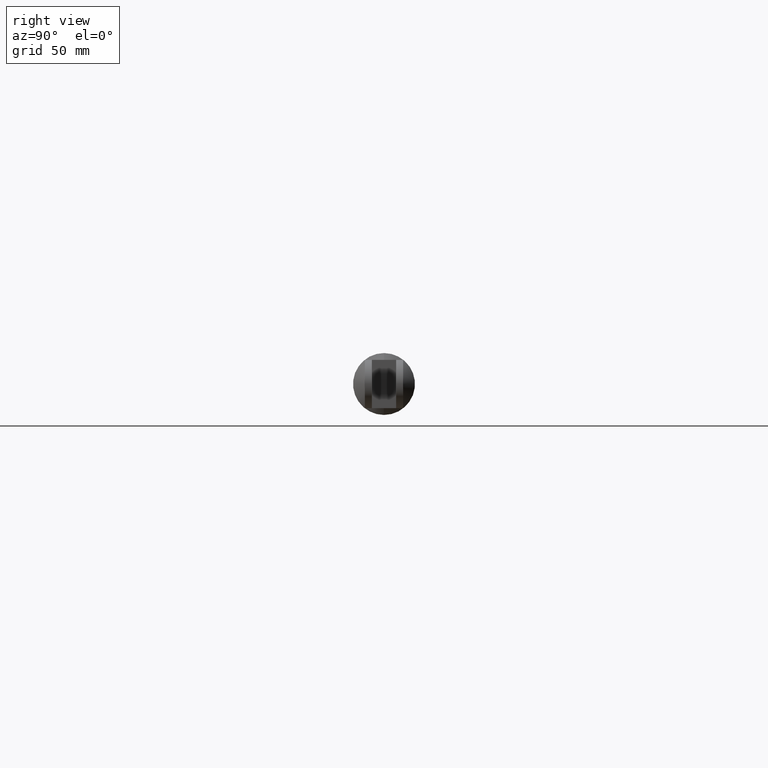
[diagram: clean part render]
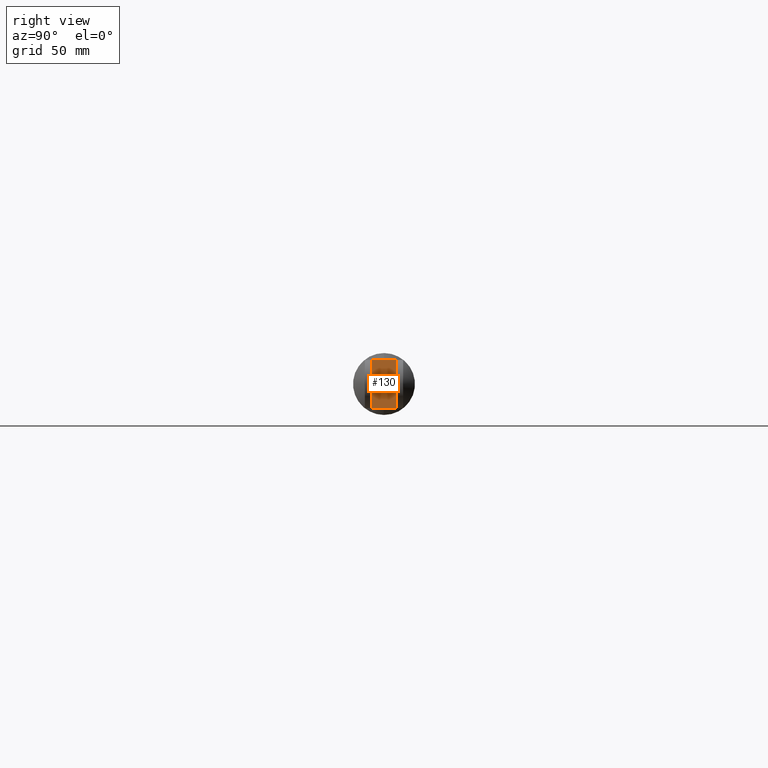
[diagram: same view with one face highlighted and labeled with its STEP entity id]
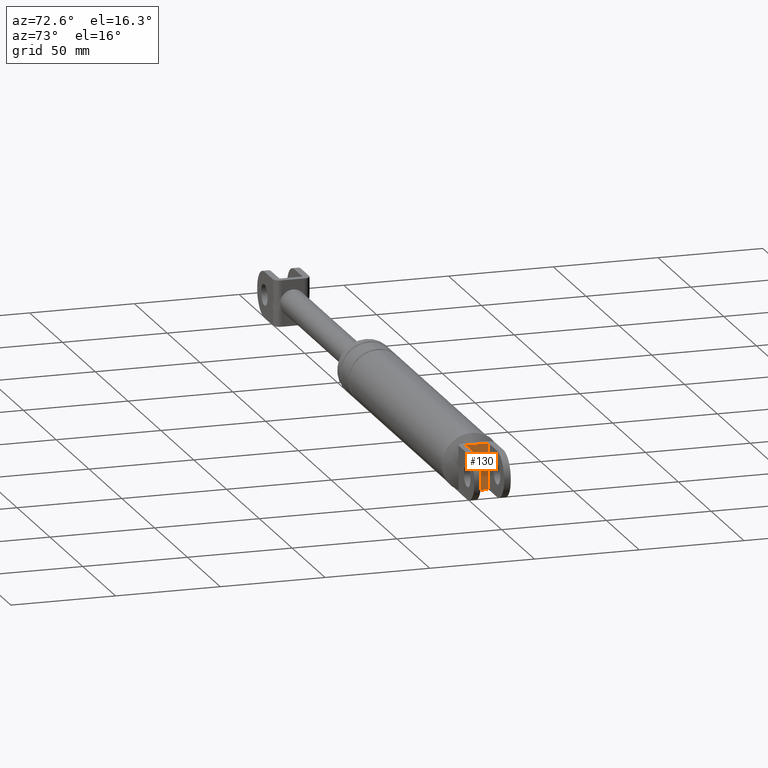
[diagram: same view with one face highlighted and labeled with its STEP entity id]
A machine part, right view. The second image highlights one B-rep face of the part: STEP entity #130.
A second angle (auxiliary view) of the same face is appended — the face is thin or edge-on in the first view.
In plain terms, the highlighted planar face has unit normal (-1, 0, 0).
Its self-contained STEP definition (entity closure, byte-faithful):
#130=ADVANCED_FACE('',(#362),#361,.F.);
#361=PLANE('',#976);
#362=FACE_OUTER_BOUND('',#977,.T.);
#973=CARTESIAN_POINT('',(3.62475208154E+002,-6.60000000000E+000,1.66244335058E+002));
#974=DIRECTION('',(-1.00000000000E+000,0.00000000000E+000,0.00000000000E+000));
#975=DIRECTION('',(0.00000000000E+000,0.00000000000E+000,1.00000000000E+000));
#976=AXIS2_PLACEMENT_3D('',#973,#974,#975);
#977=EDGE_LOOP('',(#1488,#1489,#1490,#1491));
#1488=ORIENTED_EDGE('',*,*,#1757,.T.);
#1489=ORIENTED_EDGE('',*,*,#1753,.F.);
#1490=ORIENTED_EDGE('',*,*,#1759,.F.);
#1491=ORIENTED_EDGE('',*,*,#1735,.T.);
#1735=EDGE_CURVE('',#2049,#2042,#2050,.T.);
#1753=EDGE_CURVE('',#2161,#2154,#2168,.T.);
#1757=EDGE_CURVE('',#2042,#2154,#2194,.T.);
#1759=EDGE_CURVE('',#2049,#2161,#2206,.T.);
#2042=VERTEX_POINT('',#3026);
#2049=VERTEX_POINT('',#3030);
#2050=LINE('',#3031,#3032);
#2154=VERTEX_POINT('',#3095);
#2161=VERTEX_POINT('',#3099);
#2168=LINE('',#3103,#3104);
#2194=LINE('',#3119,#3120);
#2206=LINE('',#3125,#3126);
#3026=CARTESIAN_POINT('',(3.62475208154E+002,-5.50000000000E+000,1.68444335058E+002));
#3030=CARTESIAN_POINT('',(3.62475208154E+002,-5.50000000000E+000,1.90444335058E+002));
#3031=CARTESIAN_POINT('',(3.62475208154E+002,-5.50000000000E+000,1.90444335058E+002));
#3032=VECTOR('',#3033,2.20000000000E+001);
#3033=DIRECTION('',(0.00000000000E+000,0.00000000000E+000,-1.00000000000E+000));
#3095=CARTESIAN_POINT('',(3.62475208154E+002,5.50000000000E+000,1.68444335058E+002));
#3099=CARTESIAN_POINT('',(3.62475208154E+002,5.50000000000E+000,1.90444335058E+002));
#3103=CARTESIAN_POINT('',(3.62475208154E+002,5.50000000000E+000,1.90444335058E+002));
#3104=VECTOR('',#3105,2.20000000000E+001);
#3105=DIRECTION('',(0.00000000000E+000,0.00000000000E+000,-1.00000000000E+000));
#3119=CARTESIAN_POINT('',(3.62475208154E+002,-5.50000000000E+000,1.68444335058E+002));
#3120=VECTOR('',#3121,1.10000000000E+001);
#3121=DIRECTION('',(0.00000000000E+000,1.00000000000E+000,0.00000000000E+000));
#3125=CARTESIAN_POINT('',(3.62475208154E+002,-5.50000000000E+000,1.90444335058E+002));
#3126=VECTOR('',#3127,1.10000000000E+001);
#3127=DIRECTION('',(0.00000000000E+000,1.00000000000E+000,0.00000000000E+000));